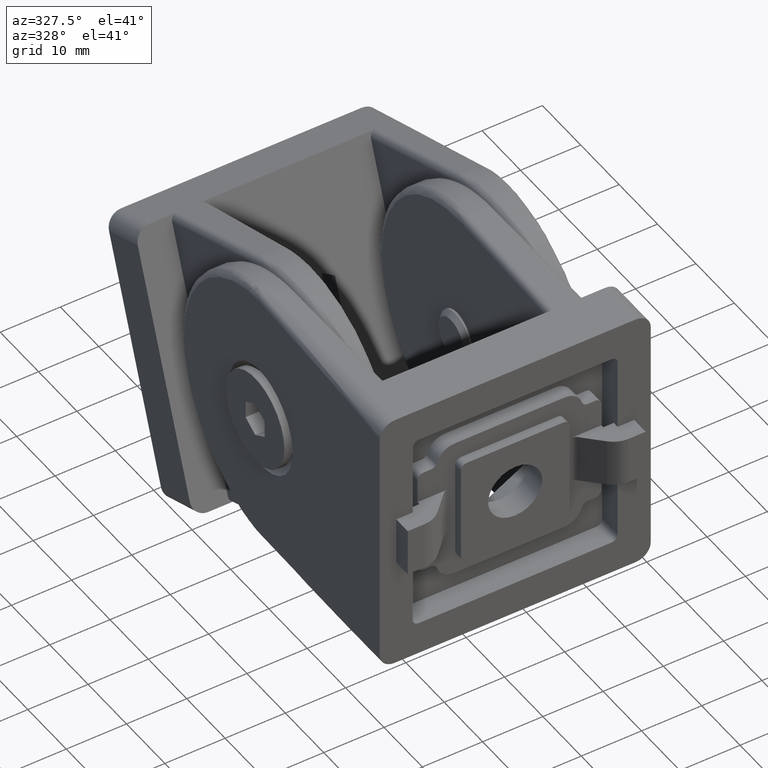
[diagram: clean part render]
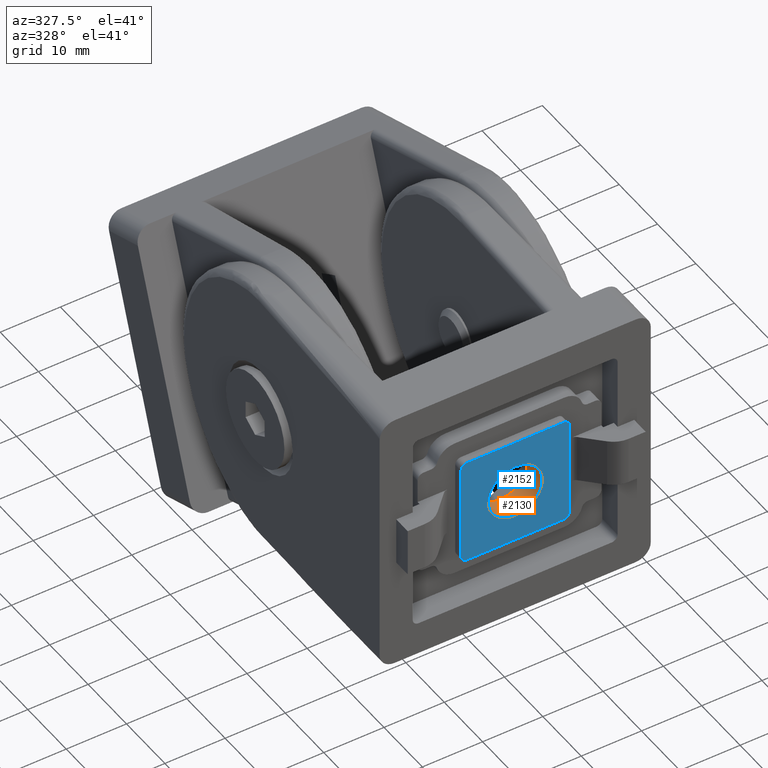
[diagram: same view with the hole feature highlighted: cylindrical wall and planar end face, labeled with their STEP entity ids]
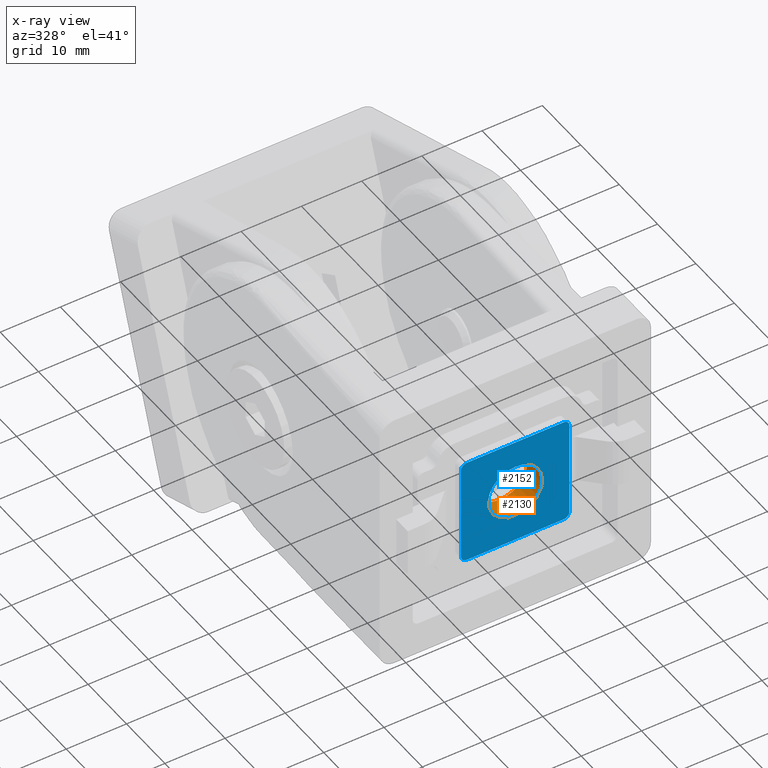
[diagram: x-ray of the same camera — body ghosted, the hole faces saturated]
A machine part, auxiliary view. The highlighted faces form one hole feature of diameter 9 mm: the cylindrical wall (entity #2130, orange) and its adjacent planar end face (entity #2152, blue) — they share a circular edge in the B-rep.
The next image is the same camera in x-ray (body ghosted, the hole faces saturated) — the bore reads through the body.
Wall:
#498=FACE_BOUND('',#702,.T.);
#527=CYLINDRICAL_SURFACE('',#2264,4.5);
#574=FACE_OUTER_BOUND('',#701,.T.);
#701=EDGE_LOOP('',(#1490));
#702=EDGE_LOOP('',(#1491));
#853=CIRCLE('',#2265,4.5);
#854=CIRCLE('',#2266,4.5);
#963=VERTEX_POINT('',#3209);
#964=VERTEX_POINT('',#3211);
#1173=EDGE_CURVE('',#963,#963,#853,.T.);
#1174=EDGE_CURVE('',#964,#964,#854,.T.);
#1490=ORIENTED_EDGE('',*,*,#1173,.F.);
#1491=ORIENTED_EDGE('',*,*,#1174,.T.);
#2130=ADVANCED_FACE('',(#574,#498),#527,.F.);
#2264=AXIS2_PLACEMENT_3D('',#3208,#2491,#2492);
#2265=AXIS2_PLACEMENT_3D('',#3210,#2493,#2494);
#2266=AXIS2_PLACEMENT_3D('',#3212,#2495,#2496);
#2491=DIRECTION('center_axis',(0.,-1.,0.));
#2492=DIRECTION('ref_axis',(0.,0.,-1.));
#2493=DIRECTION('center_axis',(2.56996070515083E-16,-1.,-2.56190093990169E-31));
#2494=DIRECTION('ref_axis',(-1.,-2.56996070515083E-16,-1.64599618650908E-47));
#2495=DIRECTION('center_axis',(0.,-1.,0.));
#2496=DIRECTION('ref_axis',(0.,0.,-1.));
#3208=CARTESIAN_POINT('Origin',(2.75545529808154E-15,54.,22.5));
#3209=CARTESIAN_POINT('',(2.75545529808154E-15,4.,18.));
#3210=CARTESIAN_POINT('Origin',(2.75545529808154E-15,4.,22.5));
#3211=CARTESIAN_POINT('',(2.75545529808154E-15,0.,18.));
#3212=CARTESIAN_POINT('Origin',(2.75545529808154E-15,0.,22.5));
End face:
#110=LINE('',#3676,#300);
#113=LINE('',#3682,#303);
#117=LINE('',#3689,#307);
#119=LINE('',#3694,#309);
#300=VECTOR('',#2647,16.);
#303=VECTOR('',#2652,16.);
#307=VECTOR('',#2658,16.);
#309=VECTOR('',#2662,16.);
#448=PLANE('',#2315);
#505=FACE_BOUND('',#731,.T.);
#596=FACE_OUTER_BOUND('',#730,.T.);
#730=EDGE_LOOP('',(#1640,#1641,#1642,#1643,#1644,#1645,#1646,#1647));
#731=EDGE_LOOP('',(#1648));
#854=CIRCLE('',#2266,4.5);
#878=CIRCLE('',#2316,1.);
#879=CIRCLE('',#2317,1.);
#880=CIRCLE('',#2318,1.);
#881=CIRCLE('',#2319,1.);
#964=VERTEX_POINT('',#3211);
#1041=VERTEX_POINT('',#3674);
#1042=VERTEX_POINT('',#3675);
#1043=VERTEX_POINT('',#3680);
#1044=VERTEX_POINT('',#3681);
#1045=VERTEX_POINT('',#3686);
#1046=VERTEX_POINT('',#3688);
#1047=VERTEX_POINT('',#3692);
#1048=VERTEX_POINT('',#3693);
#1174=EDGE_CURVE('',#964,#964,#854,.T.);
#1277=EDGE_CURVE('',#1041,#1042,#110,.T.);
#1280=EDGE_CURVE('',#1043,#1044,#113,.T.);
#1284=EDGE_CURVE('',#1046,#1045,#117,.T.);
#1286=EDGE_CURVE('',#1047,#1048,#119,.T.);
#1289=EDGE_CURVE('',#1045,#1043,#878,.T.);
#1290=EDGE_CURVE('',#1044,#1041,#879,.T.);
#1291=EDGE_CURVE('',#1042,#1047,#880,.T.);
#1292=EDGE_CURVE('',#1048,#1046,#881,.T.);
#1640=ORIENTED_EDGE('',*,*,#1284,.T.);
#1641=ORIENTED_EDGE('',*,*,#1289,.T.);
#1642=ORIENTED_EDGE('',*,*,#1280,.T.);
#1643=ORIENTED_EDGE('',*,*,#1290,.T.);
#1644=ORIENTED_EDGE('',*,*,#1277,.T.);
#1645=ORIENTED_EDGE('',*,*,#1291,.T.);
#1646=ORIENTED_EDGE('',*,*,#1286,.T.);
#1647=ORIENTED_EDGE('',*,*,#1292,.T.);
#1648=ORIENTED_EDGE('',*,*,#1174,.F.);
#2152=ADVANCED_FACE('',(#596,#505),#448,.F.);
#2266=AXIS2_PLACEMENT_3D('',#3212,#2495,#2496);
#2315=AXIS2_PLACEMENT_3D('',#3697,#2665,#2666);
#2316=AXIS2_PLACEMENT_3D('',#3698,#2667,#2668);
#2317=AXIS2_PLACEMENT_3D('',#3699,#2669,#2670);
#2318=AXIS2_PLACEMENT_3D('',#3700,#2671,#2672);
#2319=AXIS2_PLACEMENT_3D('',#3701,#2673,#2674);
#2495=DIRECTION('center_axis',(0.,-1.,0.));
#2496=DIRECTION('ref_axis',(0.,0.,-1.));
#2647=DIRECTION('',(0.,0.,-1.));
#2652=DIRECTION('',(-1.,0.,0.));
#2658=DIRECTION('',(0.,0.,1.));
#2662=DIRECTION('',(1.,0.,1.92747052886312E-16));
#2665=DIRECTION('center_axis',(0.,1.,0.));
#2666=DIRECTION('ref_axis',(0.,0.,1.));
#2667=DIRECTION('center_axis',(0.,-1.,0.));
#2668=DIRECTION('ref_axis',(0.,0.,1.));
#2669=DIRECTION('center_axis',(0.,-1.,0.));
#2670=DIRECTION('ref_axis',(0.,0.,1.));
#2671=DIRECTION('center_axis',(0.,-1.,0.));
#2672=DIRECTION('ref_axis',(0.,0.,1.));
#2673=DIRECTION('center_axis',(0.,-1.,0.));
#2674=DIRECTION('ref_axis',(0.,0.,1.));
#3211=CARTESIAN_POINT('',(2.75545529808154E-15,0.,18.));
#3212=CARTESIAN_POINT('Origin',(2.75545529808154E-15,0.,22.5));
#3674=CARTESIAN_POINT('',(-9.,0.,30.5));
#3675=CARTESIAN_POINT('',(-9.,0.,14.5));
#3676=CARTESIAN_POINT('',(-9.,0.,13.5));
#3680=CARTESIAN_POINT('',(8.,0.,31.5));
#3681=CARTESIAN_POINT('',(-8.,0.,31.5));
#3682=CARTESIAN_POINT('',(9.,0.,31.5));
#3686=CARTESIAN_POINT('',(9.,0.,30.5));
#3688=CARTESIAN_POINT('',(9.,0.,14.5));
#3689=CARTESIAN_POINT('',(9.,0.,13.5));
#3692=CARTESIAN_POINT('',(-8.,0.,13.5));
#3693=CARTESIAN_POINT('',(8.,0.,13.5));
#3694=CARTESIAN_POINT('',(9.,0.,13.5));
#3697=CARTESIAN_POINT('Origin',(-22.5,0.,45.));
#3698=CARTESIAN_POINT('Origin',(8.,0.,30.5));
#3699=CARTESIAN_POINT('Origin',(-8.,0.,30.5));
#3700=CARTESIAN_POINT('Origin',(-8.,0.,14.5));
#3701=CARTESIAN_POINT('Origin',(8.,0.,14.5));